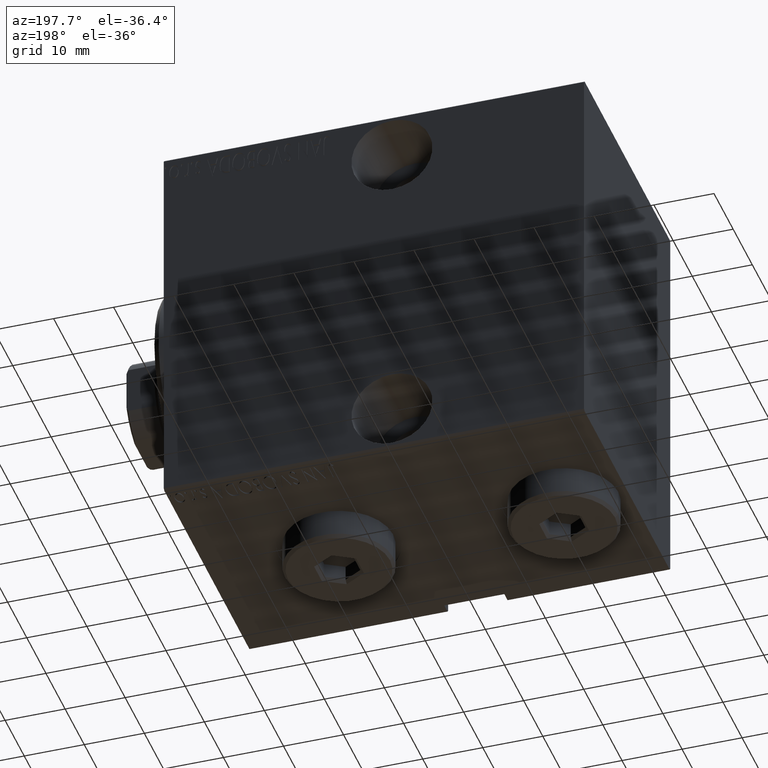
[diagram: clean part render]
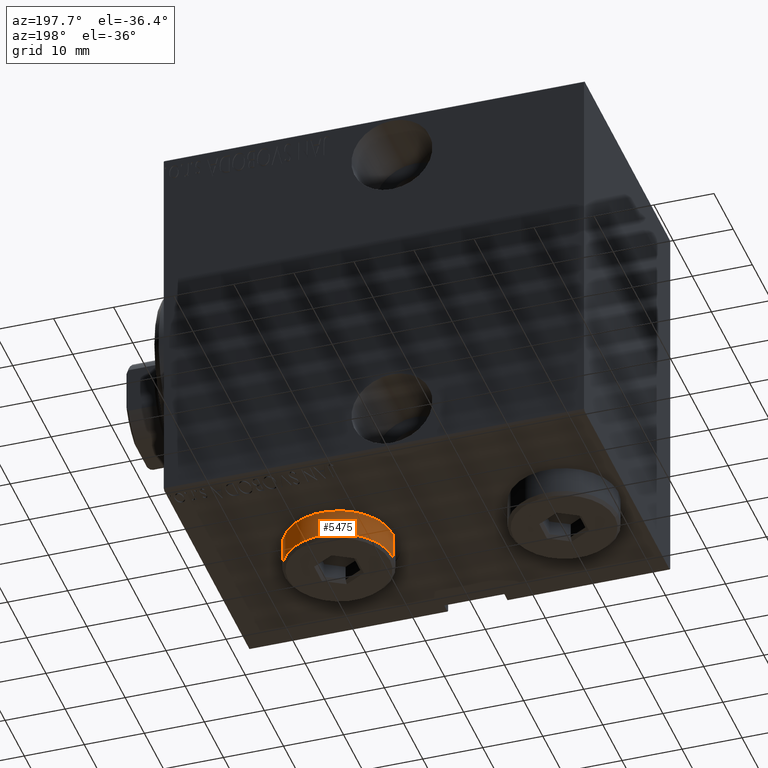
[diagram: same view with one face highlighted and labeled with its STEP entity id]
A machine part, auxiliary view. The second image highlights one B-rep face of the part: STEP entity #5475.
In plain terms, the highlighted cylindrical surface (partial cylindrical patch) has radius 9 mm, axis along (0, 0, 1).
Its self-contained STEP definition (entity closure, byte-faithful):
#717 = ORIENTED_EDGE ( 'NONE', *, *, #24108, .T. ) ;
#1469 = LINE ( 'NONE', #41871, #29629 ) ;
#1981 = AXIS2_PLACEMENT_3D ( 'NONE', #9382, #33710, #22779 ) ;
#2062 = FACE_OUTER_BOUND ( 'NONE', #6137, .T. ) ;
#4511 = ORIENTED_EDGE ( 'NONE', *, *, #23813, .T. ) ;
#4694 = LINE ( 'NONE', #4916, #17046 ) ;
#4916 = CARTESIAN_POINT ( 'NONE',  ( 9.000000000000001776, 1.102182119232617911E-15, 5.000000000000000000 ) ) ;
#5180 = CYLINDRICAL_SURFACE ( 'NONE', #20345, 9.000000000000001776 ) ;
#5475 = ADVANCED_FACE ( 'NONE', ( #2062 ), #5180, .T. ) ;
#5865 = EDGE_CURVE ( 'NONE', #43379, #42988, #1469, .T. ) ;
#6137 = EDGE_LOOP ( 'NONE', ( #12338, #717, #30883, #4511 ) ) ;
#8385 = CIRCLE ( 'NONE', #41172, 9.000000000000001776 ) ;
#9382 = CARTESIAN_POINT ( 'NONE',  ( 0.000000000000000000, 0.000000000000000000, 4.500000000000006217 ) ) ;
#12338 = ORIENTED_EDGE ( 'NONE', *, *, #33487, .F. ) ;
#12938 = VERTEX_POINT ( 'NONE', #43004 ) ;
#14010 = CARTESIAN_POINT ( 'NONE',  ( 9.000000000000001776, 1.102182119232617911E-15, 0.000000000000000000 ) ) ;
#15663 = CARTESIAN_POINT ( 'NONE',  ( 0.000000000000000000, 0.000000000000000000, 5.000000000000000000 ) ) ;
#17046 = VECTOR ( 'NONE', #28576, 1000.000000000000000 ) ;
#20345 = AXIS2_PLACEMENT_3D ( 'NONE', #15663, #29284, #31974 ) ;
#21227 = CIRCLE ( 'NONE', #1981, 9.000000000000001776 ) ;
#22779 = DIRECTION ( 'NONE',  ( 1.000000000000000000, 0.000000000000000000, 0.000000000000000000 ) ) ;
#23813 = EDGE_CURVE ( 'NONE', #42988, #37481, #8385, .T. ) ;
#24108 = EDGE_CURVE ( 'NONE', #12938, #43379, #21227, .T. ) ;
#27024 = CARTESIAN_POINT ( 'NONE',  ( -9.000000000000001776, 0.000000000000000000, 0.000000000000000000 ) ) ;
#28576 = DIRECTION ( 'NONE',  ( -0.000000000000000000, -0.000000000000000000, -1.000000000000000000 ) ) ;
#29284 = DIRECTION ( 'NONE',  ( -0.000000000000000000, -0.000000000000000000, -1.000000000000000000 ) ) ;
#29629 = VECTOR ( 'NONE', #34947, 1000.000000000000000 ) ;
#29749 = DIRECTION ( 'NONE',  ( 0.000000000000000000, 0.000000000000000000, 1.000000000000000000 ) ) ;
#30883 = ORIENTED_EDGE ( 'NONE', *, *, #5865, .T. ) ;
#31974 = DIRECTION ( 'NONE',  ( -1.000000000000000000, 0.000000000000000000, 0.000000000000000000 ) ) ;
#33102 = DIRECTION ( 'NONE',  ( 1.000000000000000000, 0.000000000000000000, 0.000000000000000000 ) ) ;
#33487 = EDGE_CURVE ( 'NONE', #12938, #37481, #4694, .T. ) ;
#33710 = DIRECTION ( 'NONE',  ( 0.000000000000000000, 0.000000000000000000, -1.000000000000000000 ) ) ;
#34947 = DIRECTION ( 'NONE',  ( -0.000000000000000000, -0.000000000000000000, -1.000000000000000000 ) ) ;
#37481 = VERTEX_POINT ( 'NONE', #14010 ) ;
#40680 = CARTESIAN_POINT ( 'NONE',  ( 0.000000000000000000, 0.000000000000000000, 0.000000000000000000 ) ) ;
#41172 = AXIS2_PLACEMENT_3D ( 'NONE', #40680, #29749, #33102 ) ;
#41871 = CARTESIAN_POINT ( 'NONE',  ( -9.000000000000001776, 0.000000000000000000, 5.000000000000000000 ) ) ;
#42354 = CARTESIAN_POINT ( 'NONE',  ( -9.000000000000001776, 0.000000000000000000, 4.500000000000006217 ) ) ;
#42988 = VERTEX_POINT ( 'NONE', #27024 ) ;
#43004 = CARTESIAN_POINT ( 'NONE',  ( 9.000000000000001776, 1.102182119232617911E-15, 4.500000000000006217 ) ) ;
#43379 = VERTEX_POINT ( 'NONE', #42354 ) ;